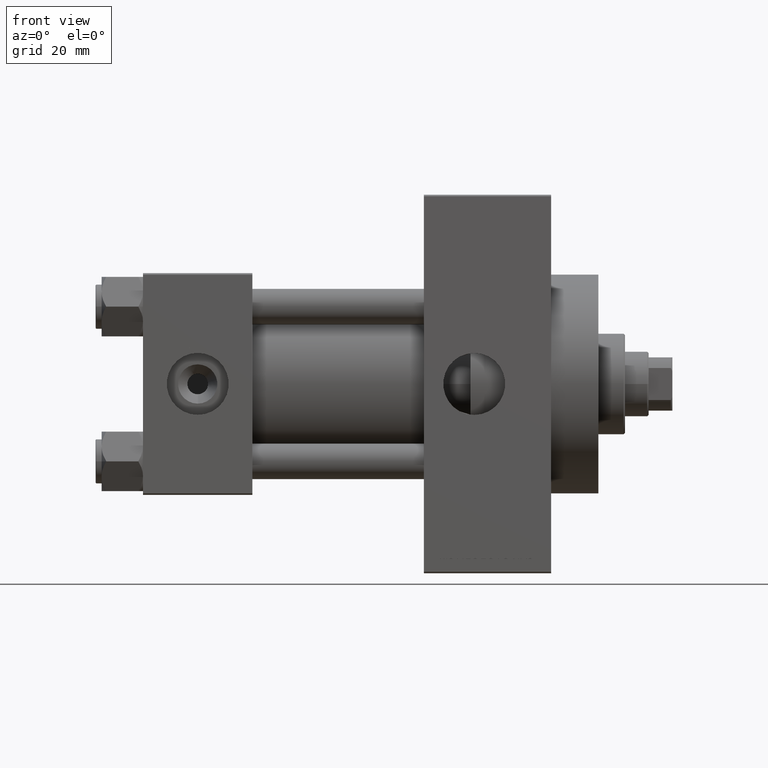
[diagram: clean part render]
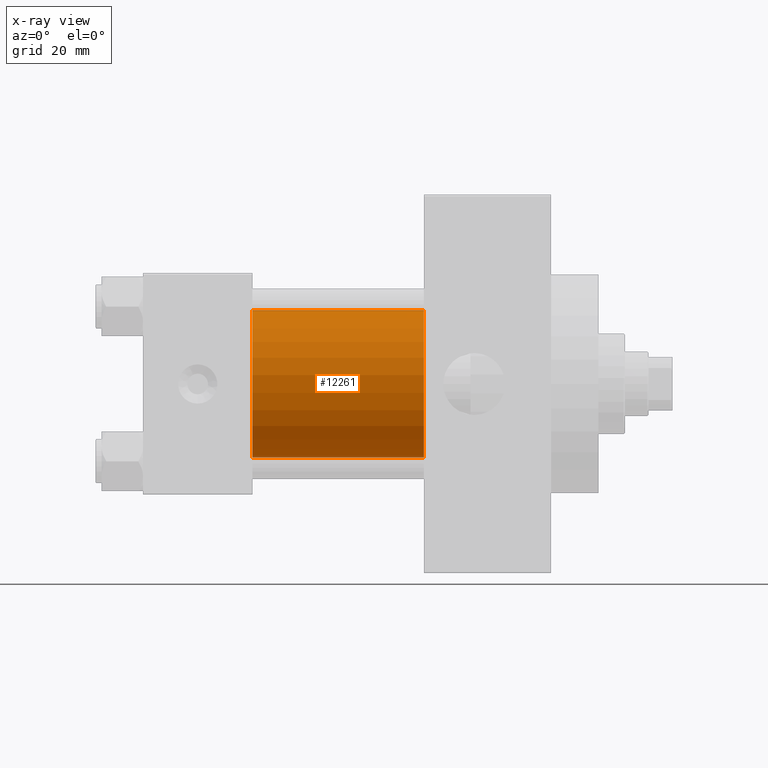
[diagram: x-ray — body ghosted, one internal face saturated and labeled with its STEP entity id]
A machine part, front view, then the same camera in x-ray: the body is ghosted and one INTERNAL B-rep face — a face not visible from any outside direction — is saturated and labeled: STEP entity #12261.
In plain terms, the highlighted cylindrical surface (partial cylindrical patch) has radius 25 mm, axis along (-1, -0, -0).
Its self-contained STEP definition (entity closure, byte-faithful):
#1488 = AXIS2_PLACEMENT_3D ( 'NONE', #43891, #20478, #17236 ) ;
#1762 = VERTEX_POINT ( 'NONE', #13783 ) ;
#2354 = CIRCLE ( 'NONE', #31809, 25.00000000000000000 ) ;
#3097 = CIRCLE ( 'NONE', #1488, 25.00000000000000000 ) ;
#3331 = EDGE_CURVE ( 'NONE', #35830, #12961, #2354, .T. ) ;
#5417 = CARTESIAN_POINT ( 'NONE',  ( 95.00000000000000000, 4.595317839031718093E-16, -25.00000000000000000 ) ) ;
#5587 = CARTESIAN_POINT ( 'NONE',  ( 37.00000000000000000, 4.595317839031718093E-16, -25.00000000000000000 ) ) ;
#5905 = DIRECTION ( 'NONE',  ( -1.000000000000000000, -0.000000000000000000, -0.000000000000000000 ) ) ;
#9071 = CYLINDRICAL_SURFACE ( 'NONE', #24184, 25.00000000000000000 ) ;
#10134 = LINE ( 'NONE', #5417, #27821 ) ;
#12087 = DIRECTION ( 'NONE',  ( 0.000000000000000000, 0.000000000000000000, 1.000000000000000000 ) ) ;
#12261 = ADVANCED_FACE ( 'NONE', ( #12810 ), #9071, .F. ) ;
#12810 = FACE_OUTER_BOUND ( 'NONE', #26015, .T. ) ;
#12961 = VERTEX_POINT ( 'NONE', #5587 ) ;
#13555 = CARTESIAN_POINT ( 'NONE',  ( 95.00000000000000000, -2.602085213965210642E-15, 25.00000000000000000 ) ) ;
#13783 = CARTESIAN_POINT ( 'NONE',  ( 95.00000000000000000, 4.595317839031718093E-16, -25.00000000000000000 ) ) ;
#15414 = ORIENTED_EDGE ( 'NONE', *, *, #39049, .F. ) ;
#15817 = CARTESIAN_POINT ( 'NONE',  ( 95.00000000000000000, -2.602085213965210642E-15, 0.000000000000000000 ) ) ;
#15859 = VECTOR ( 'NONE', #40441, 1000.000000000000000 ) ;
#16640 = ORIENTED_EDGE ( 'NONE', *, *, #43450, .T. ) ;
#17236 = DIRECTION ( 'NONE',  ( 0.000000000000000000, 0.000000000000000000, -1.000000000000000000 ) ) ;
#20478 = DIRECTION ( 'NONE',  ( 1.000000000000000000, 0.000000000000000000, 0.000000000000000000 ) ) ;
#21394 = ORIENTED_EDGE ( 'NONE', *, *, #22581, .T. ) ;
#22581 = EDGE_CURVE ( 'NONE', #47727, #1762, #3097, .T. ) ;
#22732 = ORIENTED_EDGE ( 'NONE', *, *, #3331, .F. ) ;
#24184 = AXIS2_PLACEMENT_3D ( 'NONE', #15817, #31031, #12087 ) ;
#26015 = EDGE_LOOP ( 'NONE', ( #21394, #16640, #22732, #15414 ) ) ;
#27821 = VECTOR ( 'NONE', #5905, 1000.000000000000000 ) ;
#28513 = LINE ( 'NONE', #13555, #15859 ) ;
#29169 = CARTESIAN_POINT ( 'NONE',  ( 37.00000000000000000, -2.602085213965210642E-15, 25.00000000000000000 ) ) ;
#31031 = DIRECTION ( 'NONE',  ( -1.000000000000000000, -0.000000000000000000, -0.000000000000000000 ) ) ;
#31809 = AXIS2_PLACEMENT_3D ( 'NONE', #33456, #44164, #40673 ) ;
#33456 = CARTESIAN_POINT ( 'NONE',  ( 37.00000000000000000, -2.602085213965210642E-15, 0.000000000000000000 ) ) ;
#35830 = VERTEX_POINT ( 'NONE', #29169 ) ;
#37552 = CARTESIAN_POINT ( 'NONE',  ( 95.00000000000000000, -2.602085213965210642E-15, 25.00000000000000000 ) ) ;
#39049 = EDGE_CURVE ( 'NONE', #47727, #35830, #28513, .T. ) ;
#40441 = DIRECTION ( 'NONE',  ( -1.000000000000000000, -0.000000000000000000, -0.000000000000000000 ) ) ;
#40673 = DIRECTION ( 'NONE',  ( 0.000000000000000000, 0.000000000000000000, -1.000000000000000000 ) ) ;
#43450 = EDGE_CURVE ( 'NONE', #1762, #12961, #10134, .T. ) ;
#43891 = CARTESIAN_POINT ( 'NONE',  ( 95.00000000000000000, -2.602085213965210642E-15, 0.000000000000000000 ) ) ;
#44164 = DIRECTION ( 'NONE',  ( 1.000000000000000000, 0.000000000000000000, 0.000000000000000000 ) ) ;
#47727 = VERTEX_POINT ( 'NONE', #37552 ) ;